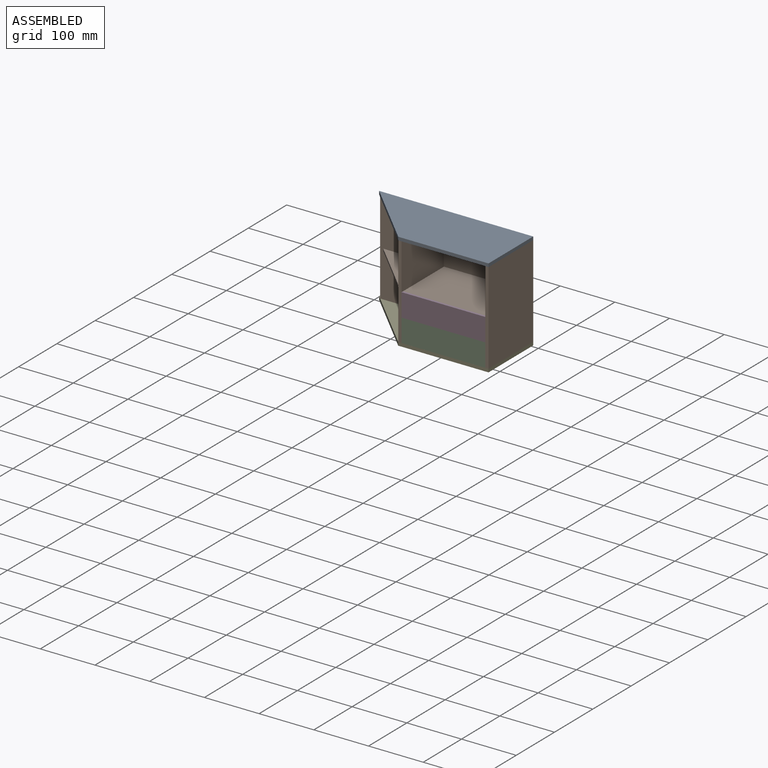
[diagram: assembled view]
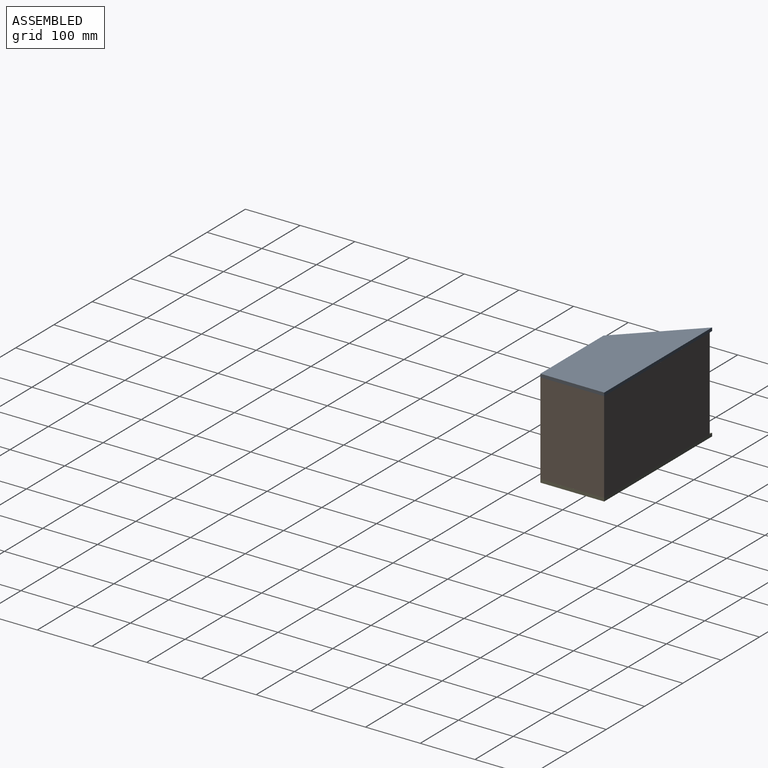
[diagram: assembled view, second angle]
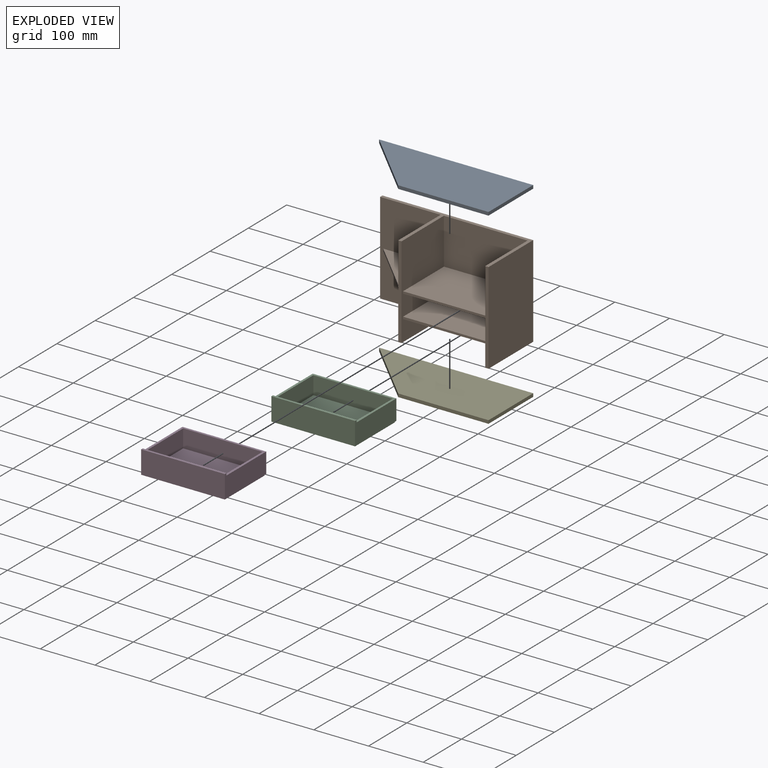
[diagram: exploded view]
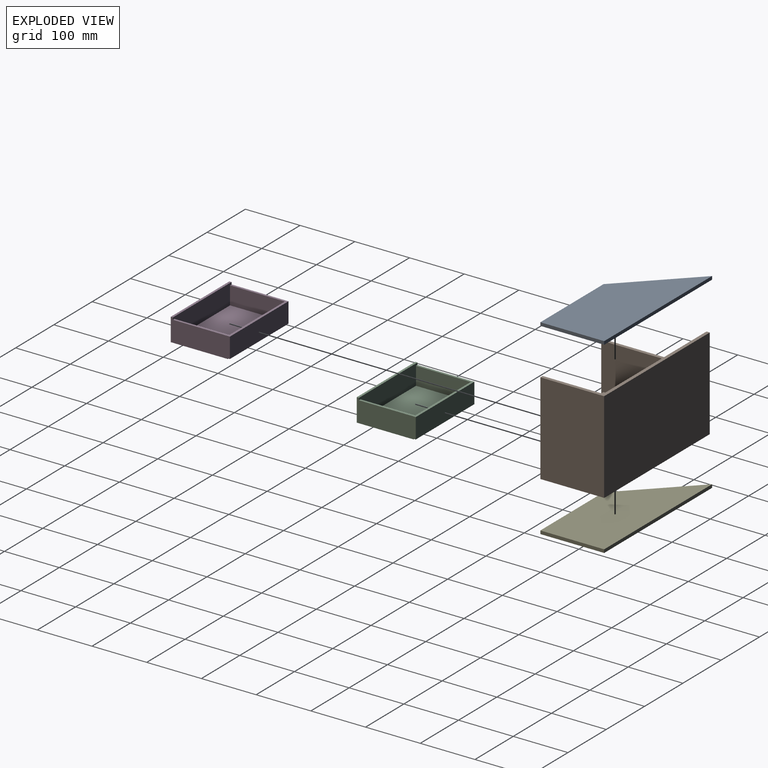
[diagram: exploded view, second angle]
ASSEMBLY  parts=5 mates=4
PART A: 6 faces, bbox 281.7x116.7x6 mm
  f0: plane 116.67x6mm, normal (1,0,0), area 700mm2, adj f1,f3,f4,f5
  f1: plane 281.67x6mm, normal (0,1,0), area 1690mm2, adj f0,f2,f4,f5
  f2: plane 116.67x116.67mm, normal (-0.71,-0.71,0), area 990mm2, adj f1,f3,f4,f5
  f3: plane 165x6mm, normal (0,-1,0), area 990mm2, adj f0,f2,f4,f5
  f4: plane 281.67x116.67mm, normal (0,0,1), area 26057.2mm2, adj f0,f1,f2,f3
  f5: plane 281.67x116.67mm, normal (0,0,-1), area 26057.2mm2, adj f0,f1,f2,f3
PART B: 23 faces, bbox 275.7x116.7x168 mm
  f0: plane 168x110.67mm, normal (-1,0,0), area 18172.9mm2, adj f1,f11,f12,f13,f20,f21,f22
  f1: plane 168x110.67mm, normal (0,-1,0), area 18172.9mm2, adj f0,f6,f12,f13,f20,f21,f22
  f2: plane 153x84mm, normal (0,-1,0), area 12852mm2, adj f3,f5,f13,f19
  f3: plane 168x110.67mm, normal (-1,0,0), area 17739.6mm2, adj f2,f4,f9,f10,f12,f13,f14,f15
  f4: plane 153x38mm, normal (0,-1,0), area 5814mm2, adj f3,f5,f12,f14
  f5: plane 168x110.67mm, normal (1,0,0), area 17739.6mm2, adj f2,f4,f10,f11,f12,f13,f14,f15
  f6: plane 168x6mm, normal (-1,0,0), area 1008mm2, adj f1,f7,f12,f13
  f7: plane 275.67x168mm, normal (0,1,0), area 46313mm2, adj f6,f8,f12,f13
  f8: plane 168x116.67mm, normal (1,0,0), area 19601mm2, adj f7,f9,f12,f13
  f9: plane 168x6mm, normal (0,-1,0), area 1008mm2, adj f3,f8,f12,f13
  f10: plane 153x38mm, normal (0,-1,0), area 5814mm2, adj f3,f5,f15,f17
  f11: plane 168x6mm, normal (0,-1,0), area 1008mm2, adj f0,f5,f12,f13
  f12: plane 275.67x116.67mm, normal (0,0,-1), area 2982.1mm2, adj f0,f1,f3,f4,f5,f6,f7,f8
  f13: plane 275.67x116.67mm, normal (0,0,1), area 2982.1mm2, adj f0,f1,f2,f3,f5,f6,f7,f8
  f14: plane 153x106.67mm, normal (0,0,-1), area 16320.9mm2, adj f3,f4,f5,f16
  f15: plane 153x106.67mm, normal (0,0,1), area 16320.9mm2, adj f3,f5,f10,f16
  f16: plane 153x4mm, normal (0,-1,0), area 612mm2, adj f3,f5,f14,f15
  f17: plane 153x106.67mm, normal (0,0,-1), area 16320.9mm2, adj f3,f5,f10,f18
  f18: plane 153x4mm, normal (0,-1,0), area 612mm2, adj f3,f5,f17,f19
  f19: plane 153x106.67mm, normal (0,0,1), area 16320.9mm2, adj f2,f3,f5,f18
  f20: plane 105.02x105.02mm, normal (0,0,-1), area 5514.2mm2, adj f0,f1,f22
  f21: plane 105.02x105.02mm, normal (0,0,1), area 5514.2mm2, adj f0,f1,f22
  f22: plane 105.02x105.02mm, normal (-0.71,-0.71,0), area 594.1mm2, adj f0,f1,f20,f21
PART C: 18 faces, bbox 153x108x42 mm
  f0: plane 4x1mm, normal (0,1,0), area 4mm2, adj f4,f5,f8,f9
  f1: plane 145x1mm, normal (0,1,0), area 145mm2, adj f4,f8,f9,f10
  f2: plane 153x4mm, normal (0,0,1), area 612mm2, adj f3,f5,f6,f7
  f3: plane 108x42mm, normal (-1,0,0), area 4116mm2, adj f2,f4,f6,f7,f9,f11,f15,f16
  f4: plane 153x104mm, normal (0,0,-1), area 1412mm2, adj f0,f1,f3,f5,f7,f8,f10,f15
  f5: plane 108x42mm, normal (1,0,0), area 4116mm2, adj f0,f2,f4,f6,f7,f9,f11,f16
  f6: plane 153x37mm, normal (0,1,0), area 5397mm2, adj f2,f3,f5,f11,f12,f13,f14
  f7: plane 153x42mm, normal (0,-1,0), area 6426mm2, adj f2,f3,f4,f5
  f8: plane 100x1mm, normal (-1,0,0), area 100mm2, adj f0,f1,f4,f9
  f9: plane 153x104mm, normal (0,0,-1), area 15112mm2, adj f0,f1,f3,f5,f8,f10,f15,f16
  f10: plane 100x1mm, normal (1,0,0), area 100mm2, adj f1,f4,f9,f15
  f11: plane 153x104mm, normal (0,0,1), area 1412mm2, adj f3,f5,f6,f12,f14,f16,f17
  f12: plane 100x33mm, normal (1,0,0), area 3300mm2, adj f6,f11,f13,f17
  f13: plane 145x100mm, normal (0,0,1), area 14500mm2, adj f6,f12,f14,f17
  f14: plane 100x33mm, normal (-1,0,0), area 3300mm2, adj f6,f11,f13,f17
  f15: plane 4x1mm, normal (0,1,0), area 4mm2, adj f3,f4,f9,f10
  f16: plane 153x37mm, normal (0,1,0), area 5661mm2, adj f3,f5,f9,f11
  f17: plane 145x33mm, normal (0,-1,0), area 4785mm2, adj f11,f12,f13,f14
PART D: 18 faces, bbox 153x108x42 mm
  f0: plane 4x1mm, normal (0,1,0), area 4mm2, adj f3,f4,f8,f9
  f1: plane 153x37mm, normal (0,1,0), area 5397mm2, adj f2,f4,f5,f11,f12,f13,f14
  f2: plane 108x42mm, normal (-1,0,0), area 4116mm2, adj f1,f3,f5,f7,f9,f11,f15,f16
  f3: plane 153x104mm, normal (0,0,-1), area 1412mm2, adj f0,f2,f4,f6,f7,f8,f10,f15
  f4: plane 108x42mm, normal (1,0,0), area 4116mm2, adj f0,f1,f3,f5,f7,f9,f11,f16
  f5: plane 153x4mm, normal (0,0,1), area 612mm2, adj f1,f2,f4,f7
  f6: plane 145x1mm, normal (0,1,0), area 145mm2, adj f3,f8,f9,f10
  f7: plane 153x42mm, normal (0,-1,0), area 6426mm2, adj f2,f3,f4,f5
  f8: plane 100x1mm, normal (-1,0,0), area 100mm2, adj f0,f3,f6,f9
  f9: plane 153x104mm, normal (0,0,-1), area 15112mm2, adj f0,f2,f4,f6,f8,f10,f15,f16
  f10: plane 100x1mm, normal (1,0,0), area 100mm2, adj f3,f6,f9,f15
  f11: plane 153x104mm, normal (0,0,1), area 1412mm2, adj f1,f2,f4,f12,f14,f16,f17
  f12: plane 100x33mm, normal (1,0,0), area 3300mm2, adj f1,f11,f13,f17
  f13: plane 145x100mm, normal (0,0,1), area 14500mm2, adj f1,f12,f14,f17
  f14: plane 100x33mm, normal (-1,0,0), area 3300mm2, adj f1,f11,f13,f17
  f15: plane 4x1mm, normal (0,1,0), area 4mm2, adj f2,f3,f9,f10
  f16: plane 153x37mm, normal (0,1,0), area 5661mm2, adj f2,f4,f9,f11
  f17: plane 145x33mm, normal (0,-1,0), area 4785mm2, adj f11,f12,f13,f14
PART E: 6 faces, bbox 281.7x116.7x6 mm
  f0: plane 116.67x6mm, normal (1,0,0), area 700mm2, adj f1,f3,f4,f5
  f1: plane 165x6mm, normal (0,-1,0), area 990mm2, adj f0,f2,f4,f5
  f2: plane 116.67x116.67mm, normal (-0.71,-0.71,0), area 990mm2, adj f1,f3,f4,f5
  f3: plane 281.67x6mm, normal (0,1,0), area 1690mm2, adj f0,f2,f4,f5
  f4: plane 281.67x116.67mm, normal (0,0,-1), area 26057.2mm2, adj f0,f1,f2,f3
  f5: plane 281.67x116.67mm, normal (0,0,1), area 26057.2mm2, adj f0,f1,f2,f3
PLACE A rot(axis=(-0.17,0.22,0.96),0deg) t=(16.52,-854.52,239.55)mm
PLACE B rot(axis=(-0.17,0.22,0.96),0deg) t=(16.52,-854.52,239.55)mm fixed
PLACE C t=(16.52,-854.52,239.55)mm
PLACE D rot(axis=(-0.17,0.22,0.96),0deg) t=(16.52,-854.52,239.55)mm
PLACE E rot(axis=(-0.17,0.22,0.96),0deg) t=(16.52,-854.52,239.55)mm
MATE fastened E.f0 <-> B.f8  axis (1,0,0) through (99.02,-912.86,71.55)mm
MATE slider B.f16 <-> C.f6  axis (0,-1,0) through (-59.98,-967.19,109.55)mm
MATE fastened A.f0 <-> B.f8  axis (1,0,0) through (99.02,-912.86,239.55)mm
MATE slider B.f18 <-> D.f1  axis (0,-1,0) through (-59.98,-967.19,151.55)mm
